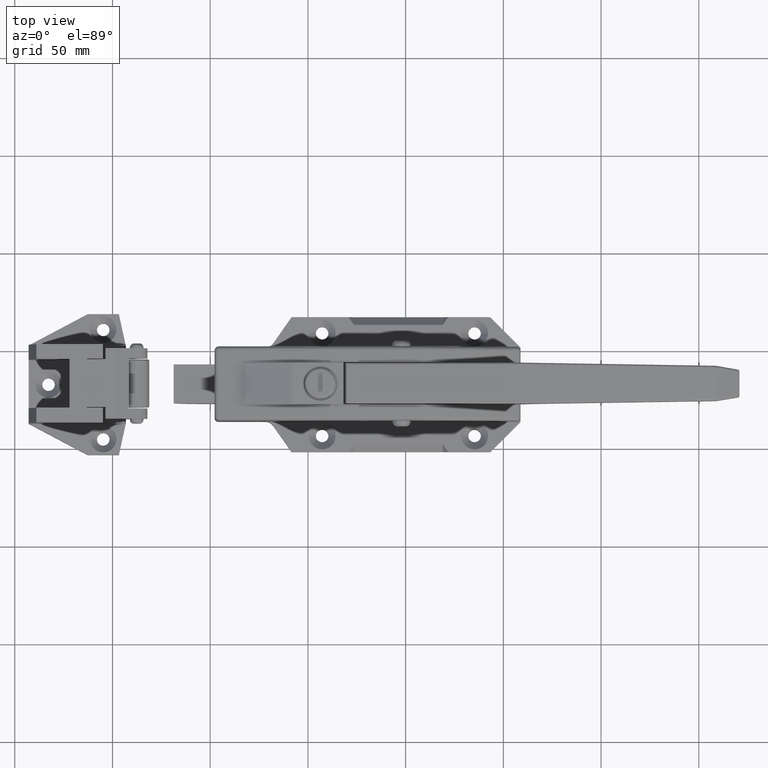
[diagram: clean part render]
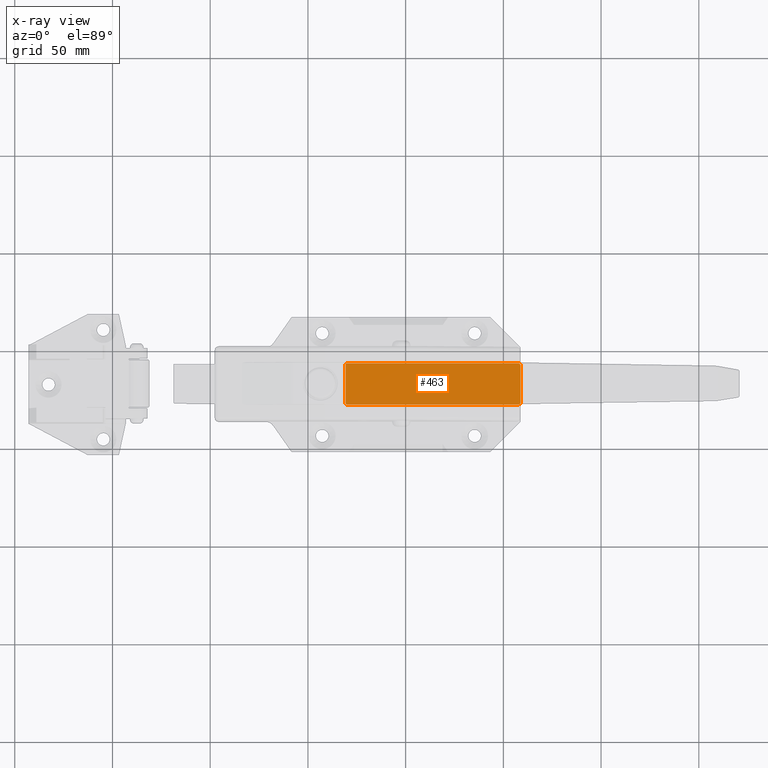
[diagram: x-ray — body ghosted, one internal face saturated and labeled with its STEP entity id]
A machine part, top view, then the same camera in x-ray: the body is ghosted and one INTERNAL B-rep face — a face not visible from any outside direction — is saturated and labeled: STEP entity #463.
In plain terms, the highlighted planar face has unit normal (0, 0, 1).
Its self-contained STEP definition (entity closure, byte-faithful):
#118 = VERTEX_POINT ( 'NONE', #134 ) ;
#134 = CARTESIAN_POINT ( 'NONE',  ( 78.24999999999998600, -9.527925469440244700, 25.99999999999980100 ) ) ;
#285 = LINE ( 'NONE', #5491, #6918 ) ;
#358 = LINE ( 'NONE', #5858, #1916 ) ;
#463 = ADVANCED_FACE ( 'NONE', ( #7081 ), #5763, .F. ) ;
#661 = CARTESIAN_POINT ( 'NONE',  ( 77.33021725764555800, 10.50000000000000000, 25.99999999999980100 ) ) ;
#670 = EDGE_CURVE ( 'NONE', #1967, #2528, #1082, .T. ) ;
#725 = CARTESIAN_POINT ( 'NONE',  ( 77.56325135229747000, -10.43326318693366900, 25.99999999999980500 ) ) ;
#727 = CARTESIAN_POINT ( 'NONE',  ( 77.44843048760820600, -10.47398503704860100, 25.99999999999980500 ) ) ;
#740 = CARTESIAN_POINT ( 'NONE',  ( 77.33021725764555800, -10.50000000000000000, 25.99999999999980100 ) ) ;
#1082 = CIRCLE ( 'NONE', #4800, 0.5000000000000004400 ) ;
#1334 = LINE ( 'NONE', #4112, #5510 ) ;
#1337 = EDGE_CURVE ( 'NONE', #2644, #2528, #5615, .T. ) ;
#1578 = CARTESIAN_POINT ( 'NONE',  ( -11.25000000000003700, 10.00000000000000000, 25.99999999999980100 ) ) ;
#1723 = B_SPLINE_CURVE_WITH_KNOTS ( 'NONE', 3,
 ( #2138, #2136, #2168, #2169, #2178, #2190, #2198, #5397, #2201, #2208 ),
 .UNSPECIFIED., .F., .F.,
 ( 4, 2, 2, 2, 4 ),
 ( 4.579801393138379200E-017, 0.0003576931871397650200, 0.0007153863742794841800, 0.001073079561419203400, 0.001430772748558922600 ),
 .UNSPECIFIED. ) ;
#1798 = ORIENTED_EDGE ( 'NONE', *, *, #4697, .T. ) ;
#1844 = ORIENTED_EDGE ( 'NONE', *, *, #8665, .F. ) ;
#1916 = VECTOR ( 'NONE', #5787, 1000.000000000000000 ) ;
#1967 = VERTEX_POINT ( 'NONE', #1578 ) ;
#2050 = VECTOR ( 'NONE', #6960, 1000.000000000000000 ) ;
#2133 = DIRECTION ( 'NONE',  ( -0.0000000000000000000, -1.000000000000000000, -0.0000000000000000000 ) ) ;
#2136 = CARTESIAN_POINT ( 'NONE',  ( 77.44863100128027600, 10.47394091038230700, 25.99999999999979700 ) ) ;
#2138 = CARTESIAN_POINT ( 'NONE',  ( 77.33021725764555800, 10.50000000000000000, 25.99999999999980100 ) ) ;
#2168 = CARTESIAN_POINT ( 'NONE',  ( 77.56121135495675400, 10.43405504940694200, 25.99999999999980500 ) ) ;
#2169 = CARTESIAN_POINT ( 'NONE',  ( 77.77403035414246800, 10.32503001536710800, 25.99999999999979700 ) ) ;
#2178 = CARTESIAN_POINT ( 'NONE',  ( 77.87493345083883900, 10.25472791229437800, 25.99999999999980500 ) ) ;
#2190 = CARTESIAN_POINT ( 'NONE',  ( 78.04705165080309800, 10.08746518346308500, 25.99999999999980100 ) ) ;
#2198 = CARTESIAN_POINT ( 'NONE',  ( 78.12040293968294700, 9.988195071802257600, 25.99999999999980500 ) ) ;
#2201 = CARTESIAN_POINT ( 'NONE',  ( 78.24999999999998600, 9.649893621405606600, 25.99999999999980500 ) ) ;
#2208 = CARTESIAN_POINT ( 'NONE',  ( 78.24999999999998600, 9.527925469440250000, 25.99999999999980100 ) ) ;
#2526 = EDGE_CURVE ( 'NONE', #6678, #118, #285, .T. ) ;
#2528 = VERTEX_POINT ( 'NONE', #4267 ) ;
#2644 = VERTEX_POINT ( 'NONE', #661 ) ;
#2678 = ORIENTED_EDGE ( 'NONE', *, *, #3689, .T. ) ;
#2748 = CARTESIAN_POINT ( 'NONE',  ( 78.24999999999998600, -9.649493469183026300, 25.99999999999979700 ) ) ;
#2807 = CARTESIAN_POINT ( 'NONE',  ( 78.24999999999998600, 9.527925469440250000, 25.99999999999980100 ) ) ;
#2954 = AXIS2_PLACEMENT_3D ( 'NONE', #4714, #7124, #6102 ) ;
#3030 = ORIENTED_EDGE ( 'NONE', *, *, #1337, .F. ) ;
#3375 = EDGE_CURVE ( 'NONE', #2644, #6678, #1723, .T. ) ;
#3455 = ORIENTED_EDGE ( 'NONE', *, *, #4495, .T. ) ;
#3504 = B_SPLINE_CURVE_WITH_KNOTS ( 'NONE', 3,
 ( #6460, #2748, #6489, #6493, #6495, #6508, #6527, #725, #727, #740 ),
 .UNSPECIFIED., .F., .F.,
 ( 4, 2, 2, 2, 4 ),
 ( 5.204170427930421300E-018, 0.0003588781859447629800, 0.0007177563718895207600, 0.001076634557834278500, 0.001435512743779036300 ),
 .UNSPECIFIED. ) ;
#3689 = EDGE_CURVE ( 'NONE', #118, #4993, #3504, .T. ) ;
#3932 = ORIENTED_EDGE ( 'NONE', *, *, #3375, .T. ) ;
#4112 = CARTESIAN_POINT ( 'NONE',  ( -11.25000000000003700, 10.50000000000000000, 25.99999999999980100 ) ) ;
#4267 = CARTESIAN_POINT ( 'NONE',  ( -10.74999999999998200, 10.50000000000000000, 25.99999999999980100 ) ) ;
#4495 = EDGE_CURVE ( 'NONE', #5797, #7671, #5365, .T. ) ;
#4697 = EDGE_CURVE ( 'NONE', #4993, #5797, #358, .T. ) ;
#4714 = CARTESIAN_POINT ( 'NONE',  ( -11.25000000000003700, 10.50000000000000000, 25.99999999999980100 ) ) ;
#4800 = AXIS2_PLACEMENT_3D ( 'NONE', #5534, #7272, #7941 ) ;
#4993 = VERTEX_POINT ( 'NONE', #7808 ) ;
#5097 = ORIENTED_EDGE ( 'NONE', *, *, #2526, .T. ) ;
#5365 = CIRCLE ( 'NONE', #5807, 0.5000000000000004400 ) ;
#5397 = CARTESIAN_POINT ( 'NONE',  ( 78.22168490239083400, 9.769913730124843100, 25.99999999999980500 ) ) ;
#5491 = CARTESIAN_POINT ( 'NONE',  ( 78.24999999999998600, 10.50000000000000000, 25.99999999999980100 ) ) ;
#5510 = VECTOR ( 'NONE', #5768, 1000.000000000000000 ) ;
#5534 = CARTESIAN_POINT ( 'NONE',  ( -10.74999999999998200, 10.00000000000000000, 25.99999999999980100 ) ) ;
#5615 = LINE ( 'NONE', #6856, #2050 ) ;
#5763 = PLANE ( 'NONE',  #2954 ) ;
#5768 = DIRECTION ( 'NONE',  ( -0.0000000000000000000, -1.000000000000000000, -0.0000000000000000000 ) ) ;
#5787 = DIRECTION ( 'NONE',  ( -1.000000000000000000, -0.0000000000000000000, -0.0000000000000000000 ) ) ;
#5797 = VERTEX_POINT ( 'NONE', #7503 ) ;
#5807 = AXIS2_PLACEMENT_3D ( 'NONE', #6330, #6328, #6319 ) ;
#5832 = ORIENTED_EDGE ( 'NONE', *, *, #670, .T. ) ;
#5858 = CARTESIAN_POINT ( 'NONE',  ( -11.25000000000003700, -10.50000000000000000, 25.99999999999980100 ) ) ;
#6102 = DIRECTION ( 'NONE',  ( 1.000000000000000000, 0.0000000000000000000, -0.0000000000000000000 ) ) ;
#6319 = DIRECTION ( 'NONE',  ( 1.000000000000000000, 0.0000000000000000000, 0.0000000000000000000 ) ) ;
#6328 = DIRECTION ( 'NONE',  ( -0.0000000000000000000, -0.0000000000000000000, -1.000000000000000000 ) ) ;
#6330 = CARTESIAN_POINT ( 'NONE',  ( -10.75000000000003700, -10.00000000000000000, 25.99999999999980100 ) ) ;
#6460 = CARTESIAN_POINT ( 'NONE',  ( 78.24999999999998600, -9.527925469440244700, 25.99999999999980100 ) ) ;
#6489 = CARTESIAN_POINT ( 'NONE',  ( 78.22218208714859600, -9.768305518864528000, 25.99999999999980500 ) ) ;
#6493 = CARTESIAN_POINT ( 'NONE',  ( 78.12130728205662000, -9.986775343889378900, 25.99999999999979700 ) ) ;
#6495 = CARTESIAN_POINT ( 'NONE',  ( 78.04857511239652000, -10.08562850844170800, 25.99999999999980500 ) ) ;
#6508 = CARTESIAN_POINT ( 'NONE',  ( 77.87674138160720400, -10.25332034306016600, 25.99999999999980100 ) ) ;
#6527 = CARTESIAN_POINT ( 'NONE',  ( 77.77645729147883500, -10.32352815446480500, 25.99999999999980500 ) ) ;
#6678 = VERTEX_POINT ( 'NONE', #2807 ) ;
#6856 = CARTESIAN_POINT ( 'NONE',  ( -11.25000000000003700, 10.50000000000000000, 25.99999999999980100 ) ) ;
#6918 = VECTOR ( 'NONE', #2133, 1000.000000000000000 ) ;
#6960 = DIRECTION ( 'NONE',  ( -1.000000000000000000, -0.0000000000000000000, -0.0000000000000000000 ) ) ;
#7081 = FACE_OUTER_BOUND ( 'NONE', #7190, .T. ) ;
#7124 = DIRECTION ( 'NONE',  ( 0.0000000000000000000, 0.0000000000000000000, 1.000000000000000000 ) ) ;
#7190 = EDGE_LOOP ( 'NONE', ( #5097, #2678, #1798, #3455, #1844, #5832, #3030, #3932 ) ) ;
#7272 = DIRECTION ( 'NONE',  ( -0.0000000000000000000, -0.0000000000000000000, -1.000000000000000000 ) ) ;
#7503 = CARTESIAN_POINT ( 'NONE',  ( -10.75000000000003700, -10.50000000000000000, 25.99999999999980100 ) ) ;
#7671 = VERTEX_POINT ( 'NONE', #8611 ) ;
#7808 = CARTESIAN_POINT ( 'NONE',  ( 77.33021725764555800, -10.50000000000000000, 25.99999999999980100 ) ) ;
#7941 = DIRECTION ( 'NONE',  ( 1.000000000000000000, 0.0000000000000000000, 0.0000000000000000000 ) ) ;
#8611 = CARTESIAN_POINT ( 'NONE',  ( -11.25000000000003700, -9.999999999999992900, 25.99999999999980100 ) ) ;
#8665 = EDGE_CURVE ( 'NONE', #1967, #7671, #1334, .T. ) ;